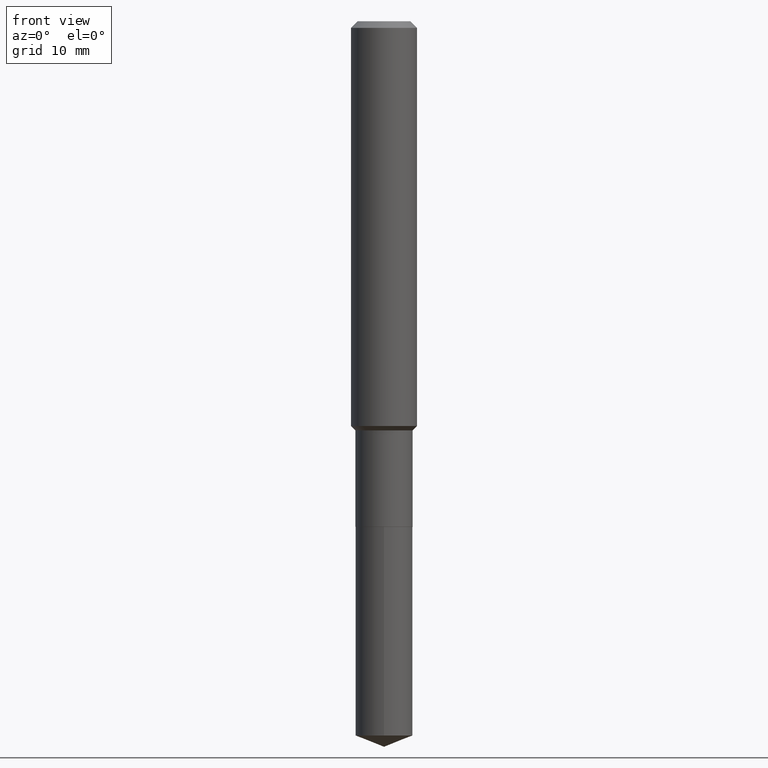
[diagram: clean part render]
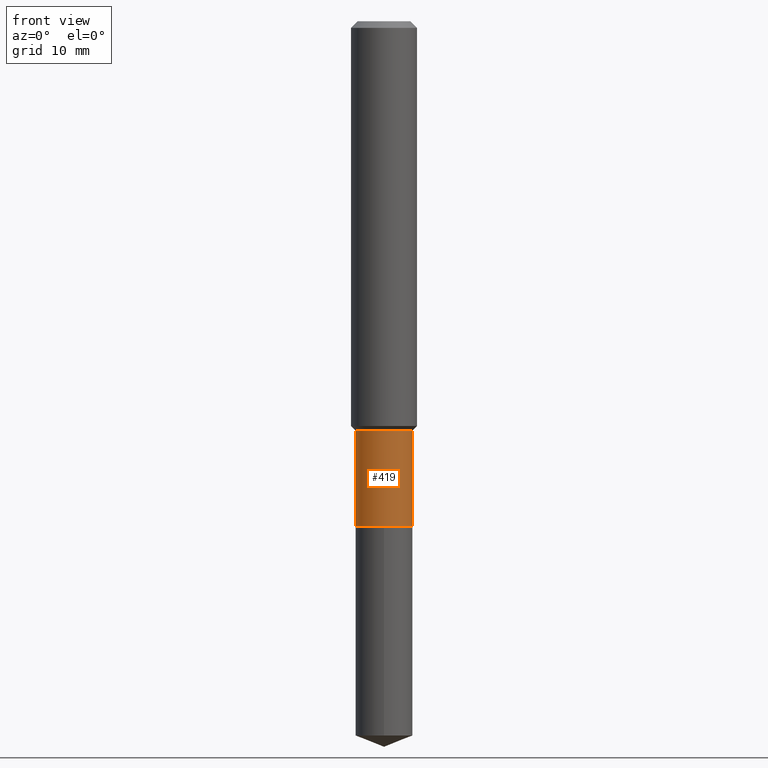
[diagram: same view with one face highlighted and labeled with its STEP entity id]
A machine part, front view. The second image highlights one B-rep face of the part: STEP entity #419.
In plain terms, the highlighted cylindrical surface (edge-blend (fillet) strip) has radius 2.5997 mm, axis along (-0, 0, 1).
Its self-contained STEP definition (entity closure, byte-faithful):
#2 = CARTESIAN_POINT ( 'NONE',  ( 0.1023499999999999827, -7.147062300611892976E-16, 4.990766930027139796E-30 ) ) ;
#7 = CYLINDRICAL_SURFACE ( 'NONE', #465, 0.1023499999999999827 ) ;
#31 = CIRCLE ( 'NONE', #368, 0.1023499999999999688 ) ;
#38 = DIRECTION ( 'NONE',  ( -2.445468806185136597E-29, 3.491481338843145583E-15, 1.000000000000000000 ) ) ;
#45 = EDGE_CURVE ( 'NONE', #347, #326, #441, .T. ) ;
#114 = ORIENTED_EDGE ( 'NONE', *, *, #45, .T. ) ;
#119 = AXIS2_PLACEMENT_3D ( 'NONE', #131, #286, #200 ) ;
#127 = EDGE_CURVE ( 'NONE', #326, #383, #186, .T. ) ;
#131 = CARTESIAN_POINT ( 'NONE',  ( 4.427521273598189436E-29, -6.321326963975514491E-15, -1.810499999999999998 ) ) ;
#145 = ORIENTED_EDGE ( 'NONE', *, *, #335, .F. ) ;
#150 = CARTESIAN_POINT ( 'NONE',  ( -0.1023499999999999965, -4.991456794840725672E-15, -1.810499999999999998 ) ) ;
#153 = CARTESIAN_POINT ( 'NONE',  ( 0.000000000000000000, 0.000000000000000000, 0.000000000000000000 ) ) ;
#186 = LINE ( 'NONE', #2, #300 ) ;
#191 = CARTESIAN_POINT ( 'NONE',  ( -0.1023499999999999827, 7.272404900504624170E-16, -5.034530064875895945E-30 ) ) ;
#195 = FACE_OUTER_BOUND ( 'NONE', #446, .T. ) ;
#200 = DIRECTION ( 'NONE',  ( 1.000000000000000000, -6.982962677686270655E-15, 0.000000000000000000 ) ) ;
#214 = CARTESIAN_POINT ( 'NONE',  ( 0.1023499999999999965, -7.036033194036704874E-15, -1.810499999999999998 ) ) ;
#237 = VECTOR ( 'NONE', #349, 39.37007874015748143 ) ;
#248 = ORIENTED_EDGE ( 'NONE', *, *, #127, .T. ) ;
#256 = CARTESIAN_POINT ( 'NONE',  ( 3.583345441703080279E-29, -5.116067605806860307E-15, -1.465299999999999825 ) ) ;
#266 = DIRECTION ( 'NONE',  ( 1.000000000000000000, -6.982962677686262766E-15, 0.000000000000000000 ) ) ;
#279 = LINE ( 'NONE', #191, #237 ) ;
#286 = DIRECTION ( 'NONE',  ( -2.445468806185136597E-29, 3.491481338843145583E-15, 1.000000000000000000 ) ) ;
#300 = VECTOR ( 'NONE', #462, 39.37007874015748143 ) ;
#323 = ORIENTED_EDGE ( 'NONE', *, *, #456, .F. ) ;
#326 = VERTEX_POINT ( 'NONE', #214 ) ;
#335 = EDGE_CURVE ( 'NONE', #450, #383, #31, .T. ) ;
#347 = VERTEX_POINT ( 'NONE', #150 ) ;
#349 = DIRECTION ( 'NONE',  ( -2.445468806185136877E-29, 3.491481338843145188E-15, 1.000000000000000000 ) ) ;
#368 = AXIS2_PLACEMENT_3D ( 'NONE', #256, #38, #266 ) ;
#382 = CARTESIAN_POINT ( 'NONE',  ( -0.1023499999999999688, -4.991456794840725672E-15, -1.465299999999999825 ) ) ;
#383 = VERTEX_POINT ( 'NONE', #403 ) ;
#403 = CARTESIAN_POINT ( 'NONE',  ( 0.1023499999999999688, -5.830773835868049112E-15, -1.465299999999999825 ) ) ;
#419 = ADVANCED_FACE ( 'NONE', ( #195 ), #7, .T. ) ;
#441 = CIRCLE ( 'NONE', #119, 0.1023499999999999965 ) ;
#446 = EDGE_LOOP ( 'NONE', ( #323, #114, #248, #145 ) ) ;
#450 = VERTEX_POINT ( 'NONE', #382 ) ;
#456 = EDGE_CURVE ( 'NONE', #347, #450, #279, .T. ) ;
#461 = DIRECTION ( 'NONE',  ( -2.445468806185136597E-29, 3.491481338843145583E-15, 1.000000000000000000 ) ) ;
#462 = DIRECTION ( 'NONE',  ( -2.445468806185136877E-29, 3.491481338843145188E-15, 1.000000000000000000 ) ) ;
#464 = DIRECTION ( 'NONE',  ( 1.000000000000000000, -6.982962677686266711E-15, 4.876176775795936353E-29 ) ) ;
#465 = AXIS2_PLACEMENT_3D ( 'NONE', #153, #461, #464 ) ;